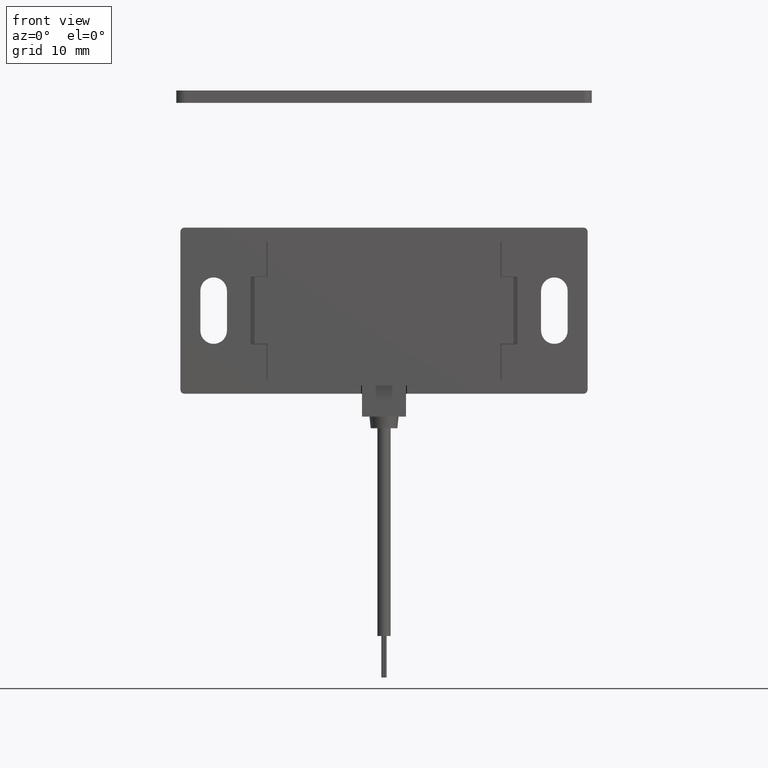
[diagram: clean part render]
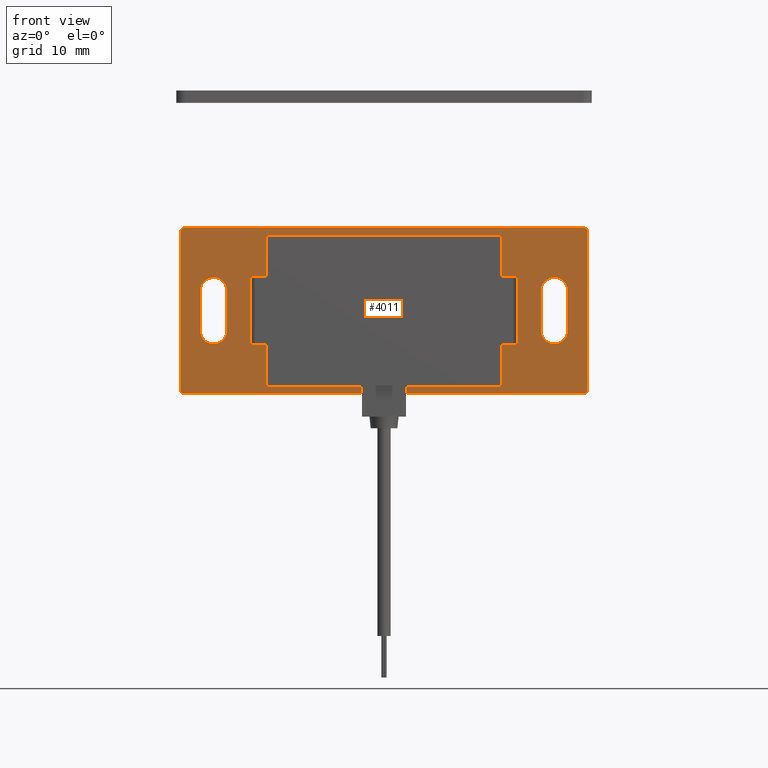
[diagram: same view with one face highlighted and labeled with its STEP entity id]
A machine part, front view. The second image highlights one B-rep face of the part: STEP entity #4011.
In plain terms, the highlighted planar face has unit normal (0, -1, 0).
Its self-contained STEP definition (entity closure, byte-faithful):
#23 = VECTOR ( 'NONE', #5667, 1000.000000000000000 ) ;
#65 = ORIENTED_EDGE ( 'NONE', *, *, #4396, .F. ) ;
#129 = CARTESIAN_POINT ( 'NONE',  ( 14.15000000000000600, 0.0000000000000000000, -9.099999999999999600 ) ) ;
#132 = EDGE_CURVE ( 'NONE', #2682, #5626, #6098, .T. ) ;
#136 = EDGE_CURVE ( 'NONE', #2744, #3153, #4745, .T. ) ;
#157 = ORIENTED_EDGE ( 'NONE', *, *, #6533, .F. ) ;
#175 = AXIS2_PLACEMENT_3D ( 'NONE', #972, #3485, #4472 ) ;
#208 = VERTEX_POINT ( 'NONE', #522 ) ;
#280 = VERTEX_POINT ( 'NONE', #2291 ) ;
#296 = EDGE_CURVE ( 'NONE', #280, #1565, #3981, .T. ) ;
#308 = DIRECTION ( 'NONE',  ( 0.0000000000000000000, -0.0000000000000000000, -1.000000000000000000 ) ) ;
#342 = CARTESIAN_POINT ( 'NONE',  ( -18.89999999999999500, -8.673617379884035500E-016, -2.399999999999999500 ) ) ;
#345 = VERTEX_POINT ( 'NONE', #5423 ) ;
#365 = VERTEX_POINT ( 'NONE', #2527 ) ;
#369 = VERTEX_POINT ( 'NONE', #3476 ) ;
#402 = LINE ( 'NONE', #1707, #2939 ) ;
#406 = CARTESIAN_POINT ( 'NONE',  ( 24.50000000000001100, 0.0000000000000000000, -9.500000000000000000 ) ) ;
#468 = CARTESIAN_POINT ( 'NONE',  ( -16.05000000000000100, 0.0000000000000000000, 4.099999999999999600 ) ) ;
#470 = VERTEX_POINT ( 'NONE', #2857 ) ;
#522 = CARTESIAN_POINT ( 'NONE',  ( -22.09999999999999400, 0.0000000000000000000, 2.399999999999999000 ) ) ;
#559 = CARTESIAN_POINT ( 'NONE',  ( -14.14999999999999900, 0.0000000000000000000, 4.099999999999999600 ) ) ;
#565 = CIRCLE ( 'NONE', #2143, 0.5000000000000004400 ) ;
#606 = CARTESIAN_POINT ( 'NONE',  ( 2.749999999999998200, -6.735557395310442000E-016, -9.000000000000001800 ) ) ;
#633 = CARTESIAN_POINT ( 'NONE',  ( -18.89999999999999500, -8.673617379884035500E-016, -2.399999999999999500 ) ) ;
#667 = CARTESIAN_POINT ( 'NONE',  ( -24.49999999999998900, 0.0000000000000000000, 9.500000000000000000 ) ) ;
#675 = DIRECTION ( 'NONE',  ( -0.0000000000000000000, -0.0000000000000000000, -1.000000000000000000 ) ) ;
#744 = EDGE_LOOP ( 'NONE', ( #4761, #2959, #4172, #2972 ) ) ;
#756 = VERTEX_POINT ( 'NONE', #3712 ) ;
#803 = CARTESIAN_POINT ( 'NONE',  ( -23.99999999999998900, 0.0000000000000000000, -10.00000000000000000 ) ) ;
#856 = CARTESIAN_POINT ( 'NONE',  ( 24.00000000000001100, 0.0000000000000000000, -9.500000000000000000 ) ) ;
#892 = VECTOR ( 'NONE', #6535, 1000.000000000000000 ) ;
#925 = VERTEX_POINT ( 'NONE', #4146 ) ;
#945 = ORIENTED_EDGE ( 'NONE', *, *, #1043, .T. ) ;
#948 = CARTESIAN_POINT ( 'NONE',  ( -14.14999999999999900, 0.0000000000000000000, -4.099999999999999600 ) ) ;
#956 = LINE ( 'NONE', #2376, #3481 ) ;
#957 = EDGE_CURVE ( 'NONE', #3280, #3073, #2250, .T. ) ;
#964 = VECTOR ( 'NONE', #1975, 1000.000000000000000 ) ;
#972 = CARTESIAN_POINT ( 'NONE',  ( -23.99999999999998900, 0.0000000000000000000, 9.500000000000000000 ) ) ;
#990 = DIRECTION ( 'NONE',  ( 0.0000000000000000000, -0.0000000000000000000, -1.000000000000000000 ) ) ;
#1029 = VERTEX_POINT ( 'NONE', #4789 ) ;
#1043 = EDGE_CURVE ( 'NONE', #2122, #925, #1772, .T. ) ;
#1084 = VECTOR ( 'NONE', #4082, 1000.000000000000000 ) ;
#1106 = CARTESIAN_POINT ( 'NONE',  ( -24.49999999999998900, 0.0000000000000000000, -10.00000000000000000 ) ) ;
#1122 = VERTEX_POINT ( 'NONE', #5454 ) ;
#1182 = ORIENTED_EDGE ( 'NONE', *, *, #4119, .T. ) ;
#1193 = CARTESIAN_POINT ( 'NONE',  ( 2.749999999999998200, -6.735557395310442000E-016, -10.00000000000000000 ) ) ;
#1197 = ORIENTED_EDGE ( 'NONE', *, *, #4403, .F. ) ;
#1240 = DIRECTION ( 'NONE',  ( 0.0000000000000000000, 0.0000000000000000000, 1.000000000000000000 ) ) ;
#1284 = EDGE_CURVE ( 'NONE', #2190, #6356, #1367, .T. ) ;
#1309 = ORIENTED_EDGE ( 'NONE', *, *, #2545, .F. ) ;
#1344 = ORIENTED_EDGE ( 'NONE', *, *, #3680, .T. ) ;
#1367 = LINE ( 'NONE', #2498, #23 ) ;
#1373 = DIRECTION ( 'NONE',  ( 0.0000000000000000000, 0.0000000000000000000, -1.000000000000000000 ) ) ;
#1391 = DIRECTION ( 'NONE',  ( 0.0000000000000000000, -1.000000000000000000, 0.0000000000000000000 ) ) ;
#1398 = CARTESIAN_POINT ( 'NONE',  ( 20.49999999999999600, -4.336808689942017700E-016, 2.399999999999999900 ) ) ;
#1441 = EDGE_CURVE ( 'NONE', #3153, #1940, #5765, .T. ) ;
#1452 = EDGE_CURVE ( 'NONE', #2042, #5992, #565, .T. ) ;
#1474 = EDGE_CURVE ( 'NONE', #3968, #4525, #402, .T. ) ;
#1509 = CARTESIAN_POINT ( 'NONE',  ( -14.14999999999999900, 0.0000000000000000000, -4.099999999999999600 ) ) ;
#1540 = VECTOR ( 'NONE', #3374, 1000.000000000000000 ) ;
#1565 = VERTEX_POINT ( 'NONE', #803 ) ;
#1574 = CARTESIAN_POINT ( 'NONE',  ( 22.09999999999999400, 0.0000000000000000000, 2.399999999999999000 ) ) ;
#1593 = CARTESIAN_POINT ( 'NONE',  ( -18.89999999999999900, -8.673617379884035500E-016, 2.399999999999999900 ) ) ;
#1601 = DIRECTION ( 'NONE',  ( -1.000000000000000000, 0.0000000000000000000, 0.0000000000000000000 ) ) ;
#1600 = CIRCLE ( 'NONE', #4407, 1.599999999999997200 ) ;
#1683 = LINE ( 'NONE', #606, #4813 ) ;
#1707 = CARTESIAN_POINT ( 'NONE',  ( 18.89999999999999500, -4.336808689942017700E-016, -2.399999999999999500 ) ) ;
#1764 = VECTOR ( 'NONE', #4668, 1000.000000000000000 ) ;
#1768 = DIRECTION ( 'NONE',  ( -5.102127870520014400E-017, -1.000000000000000000, -0.0000000000000000000 ) ) ;
#1772 = LINE ( 'NONE', #468, #5621 ) ;
#1791 = VECTOR ( 'NONE', #3743, 1000.000000000000000 ) ;
#1888 = DIRECTION ( 'NONE',  ( -5.102127870520014400E-017, -1.000000000000000000, -0.0000000000000000000 ) ) ;
#1906 = DIRECTION ( 'NONE',  ( -1.000000000000000000, -5.102127870520017500E-017, 0.0000000000000000000 ) ) ;
#1921 = DIRECTION ( 'NONE',  ( -1.000000000000000000, -0.0000000000000000000, -0.0000000000000000000 ) ) ;
#1940 = VERTEX_POINT ( 'NONE', #129 ) ;
#1965 = CARTESIAN_POINT ( 'NONE',  ( 18.89999999999999500, 0.0000000000000000000, 2.399999999999999900 ) ) ;
#1975 = DIRECTION ( 'NONE',  ( -1.000000000000000000, 0.0000000000000000000, 0.0000000000000000000 ) ) ;
#1990 = VERTEX_POINT ( 'NONE', #633 ) ;
#2042 = VERTEX_POINT ( 'NONE', #4035 ) ;
#2044 = LINE ( 'NONE', #342, #4528 ) ;
#2079 = DIRECTION ( 'NONE',  ( -6.938893903907227400E-016, 0.0000000000000000000, 1.000000000000000000 ) ) ;
#2122 = VERTEX_POINT ( 'NONE', #6007 ) ;
#2143 = AXIS2_PLACEMENT_3D ( 'NONE', #3204, #3174, #2711 ) ;
#2158 = ORIENTED_EDGE ( 'NONE', *, *, #136, .T. ) ;
#2190 = VERTEX_POINT ( 'NONE', #5581 ) ;
#2219 = EDGE_CURVE ( 'NONE', #369, #345, #3926, .T. ) ;
#2240 = EDGE_CURVE ( 'NONE', #4346, #756, #4928, .T. ) ;
#2250 = LINE ( 'NONE', #5240, #6083 ) ;
#2291 = CARTESIAN_POINT ( 'NONE',  ( -2.749999999999999100, 0.0000000000000000000, -10.00000000000000000 ) ) ;
#2321 = VECTOR ( 'NONE', #2359, 1000.000000000000000 ) ;
#2359 = DIRECTION ( 'NONE',  ( -1.387778780781445500E-015, 0.0000000000000000000, -1.000000000000000000 ) ) ;
#2376 = CARTESIAN_POINT ( 'NONE',  ( -2.750000000000001800, 0.0000000000000000000, -9.000000000000001800 ) ) ;
#2385 = ORIENTED_EDGE ( 'NONE', *, *, #1284, .F. ) ;
#2396 = ORIENTED_EDGE ( 'NONE', *, *, #6408, .F. ) ;
#2424 = FACE_OUTER_BOUND ( 'NONE', #3148, .T. ) ;
#2468 = CARTESIAN_POINT ( 'NONE',  ( 24.00000000000001100, 0.0000000000000000000, 10.00000000000000000 ) ) ;
#2485 = VECTOR ( 'NONE', #5978, 1000.000000000000000 ) ;
#2498 = CARTESIAN_POINT ( 'NONE',  ( -24.49999999999998900, 0.0000000000000000000, -10.00000000000000000 ) ) ;
#2511 = AXIS2_PLACEMENT_3D ( 'NONE', #4375, #1391, #4883 ) ;
#2518 = ORIENTED_EDGE ( 'NONE', *, *, #2219, .T. ) ;
#2527 = CARTESIAN_POINT ( 'NONE',  ( -16.05000000000000100, 0.0000000000000000000, -4.099999999999999600 ) ) ;
#2545 = EDGE_CURVE ( 'NONE', #1990, #3310, #2044, .T. ) ;
#2549 = EDGE_CURVE ( 'NONE', #2790, #1990, #3379, .T. ) ;
#2645 = LINE ( 'NONE', #5477, #2485 ) ;
#2663 = VECTOR ( 'NONE', #1921, 1000.000000000000000 ) ;
#2682 = VERTEX_POINT ( 'NONE', #5575 ) ;
#2711 = DIRECTION ( 'NONE',  ( 0.0000000000000000000, 0.0000000000000000000, -1.000000000000000000 ) ) ;
#2731 = EDGE_CURVE ( 'NONE', #1029, #5626, #4922, .T. ) ;
#2744 = VERTEX_POINT ( 'NONE', #4605 ) ;
#2785 = CARTESIAN_POINT ( 'NONE',  ( 20.49999999999999600, -4.336808689942017700E-016, -2.399999999999999500 ) ) ;
#2790 = VERTEX_POINT ( 'NONE', #3134 ) ;
#2828 = VECTOR ( 'NONE', #3584, 1000.000000000000000 ) ;
#2857 = CARTESIAN_POINT ( 'NONE',  ( 2.749999999999999100, 0.0000000000000000000, -9.099999999999999600 ) ) ;
#2880 = LINE ( 'NONE', #3275, #5211 ) ;
#2887 = LINE ( 'NONE', #3846, #4191 ) ;
#2939 = VECTOR ( 'NONE', #1240, 1000.000000000000000 ) ;
#2956 = CARTESIAN_POINT ( 'NONE',  ( 18.89999999999999500, -4.336808689942017700E-016, -2.399999999999999500 ) ) ;
#2959 = ORIENTED_EDGE ( 'NONE', *, *, #1474, .T. ) ;
#2972 = ORIENTED_EDGE ( 'NONE', *, *, #957, .T. ) ;
#2974 = ORIENTED_EDGE ( 'NONE', *, *, #3303, .T. ) ;
#2976 = CARTESIAN_POINT ( 'NONE',  ( 14.14999999999999900, 0.0000000000000000000, -4.099999999999999600 ) ) ;
#2983 = CARTESIAN_POINT ( 'NONE',  ( 16.05000000000000100, 0.0000000000000000000, -4.099999999999999600 ) ) ;
#3003 = CARTESIAN_POINT ( 'NONE',  ( 0.0000000000000000000, 0.0000000000000000000, 0.0000000000000000000 ) ) ;
#3012 = CARTESIAN_POINT ( 'NONE',  ( -14.14999999999999500, 0.0000000000000000000, 9.099999999999999600 ) ) ;
#3073 = VERTEX_POINT ( 'NONE', #5911 ) ;
#3099 = CIRCLE ( 'NONE', #6371, 1.599999999999997200 ) ;
#3119 = AXIS2_PLACEMENT_3D ( 'NONE', #2785, #6278, #3272 ) ;
#3134 = CARTESIAN_POINT ( 'NONE',  ( -22.09999999999999400, -4.336808689942017700E-016, -2.399999999999999500 ) ) ;
#3148 = EDGE_LOOP ( 'NONE', ( #5368, #1344, #3671, #2385, #3777, #5805, #3979, #1197, #5320, #4984, #4958, #3761, #157, #4727, #1182, #4674, #4780, #945, #2974, #3819, #3554, #2518, #4823, #2158 ) ) ;
#3153 = VERTEX_POINT ( 'NONE', #2976 ) ;
#3174 = DIRECTION ( 'NONE',  ( 0.0000000000000000000, -1.000000000000000000, 0.0000000000000000000 ) ) ;
#3204 = CARTESIAN_POINT ( 'NONE',  ( 24.00000000000001100, 0.0000000000000000000, 9.500000000000000000 ) ) ;
#3272 = DIRECTION ( 'NONE',  ( -1.000000000000000000, -5.102127870520017500E-017, 0.0000000000000000000 ) ) ;
#3275 = CARTESIAN_POINT ( 'NONE',  ( 24.50000000000001100, 0.0000000000000000000, 10.00000000000000000 ) ) ;
#3280 = VERTEX_POINT ( 'NONE', #1574 ) ;
#3303 = EDGE_CURVE ( 'NONE', #925, #1122, #5478, .T. ) ;
#3310 = VERTEX_POINT ( 'NONE', #1593 ) ;
#3374 = DIRECTION ( 'NONE',  ( 1.000000000000000000, 0.0000000000000000000, 0.0000000000000000000 ) ) ;
#3379 = CIRCLE ( 'NONE', #6350, 1.599999999999997200 ) ;
#3423 = LINE ( 'NONE', #3012, #892 ) ;
#3429 = LINE ( 'NONE', #3565, #5786 ) ;
#3470 = EDGE_LOOP ( 'NONE', ( #1309, #3956, #65, #2396 ) ) ;
#3476 = CARTESIAN_POINT ( 'NONE',  ( 14.14999999999999900, 0.0000000000000000000, 4.099999999999999600 ) ) ;
#3481 = VECTOR ( 'NONE', #6377, 1000.000000000000000 ) ;
#3485 = DIRECTION ( 'NONE',  ( 0.0000000000000000000, -1.000000000000000000, 0.0000000000000000000 ) ) ;
#3554 = ORIENTED_EDGE ( 'NONE', *, *, #6502, .T. ) ;
#3565 = CARTESIAN_POINT ( 'NONE',  ( 16.05000000000000100, 0.0000000000000000000, 4.099999999999999600 ) ) ;
#3584 = DIRECTION ( 'NONE',  ( 6.938893903907227400E-016, 0.0000000000000000000, 1.000000000000000000 ) ) ;
#3594 = CARTESIAN_POINT ( 'NONE',  ( -24.49999999999998900, 0.0000000000000000000, 10.00000000000000000 ) ) ;
#3624 = DIRECTION ( 'NONE',  ( -0.0000000000000000000, -0.0000000000000000000, -1.000000000000000000 ) ) ;
#3641 = LINE ( 'NONE', #5314, #2321 ) ;
#3671 = ORIENTED_EDGE ( 'NONE', *, *, #5577, .T. ) ;
#3680 = EDGE_CURVE ( 'NONE', #1940, #470, #4591, .T. ) ;
#3701 = EDGE_CURVE ( 'NONE', #3073, #3968, #4430, .T. ) ;
#3712 = CARTESIAN_POINT ( 'NONE',  ( -14.14999999999999500, 0.0000000000000000000, -9.099999999999999600 ) ) ;
#3719 = CARTESIAN_POINT ( 'NONE',  ( 14.15000000000000600, 0.0000000000000000000, -9.099999999999999600 ) ) ;
#3737 = FACE_BOUND ( 'NONE', #3470, .T. ) ;
#3743 = DIRECTION ( 'NONE',  ( -1.000000000000000000, 0.0000000000000000000, 0.0000000000000000000 ) ) ;
#3761 = ORIENTED_EDGE ( 'NONE', *, *, #296, .F. ) ;
#3770 = DIRECTION ( 'NONE',  ( 0.0000000000000000000, 0.0000000000000000000, -1.000000000000000000 ) ) ;
#3777 = ORIENTED_EDGE ( 'NONE', *, *, #3849, .T. ) ;
#3778 = CARTESIAN_POINT ( 'NONE',  ( -2.750000000000002700, 0.0000000000000000000, -9.099999999999999600 ) ) ;
#3819 = ORIENTED_EDGE ( 'NONE', *, *, #4580, .T. ) ;
#3846 = CARTESIAN_POINT ( 'NONE',  ( -22.09999999999999400, -4.336808689942017700E-016, -2.399999999999999500 ) ) ;
#3849 = EDGE_CURVE ( 'NONE', #2190, #3935, #4827, .T. ) ;
#3874 = DIRECTION ( 'NONE',  ( 0.0000000000000000000, 0.0000000000000000000, 1.000000000000000000 ) ) ;
#3926 = LINE ( 'NONE', #4565, #1084 ) ;
#3935 = VERTEX_POINT ( 'NONE', #406 ) ;
#3956 = ORIENTED_EDGE ( 'NONE', *, *, #2549, .F. ) ;
#3968 = VERTEX_POINT ( 'NONE', #2956 ) ;
#3979 = ORIENTED_EDGE ( 'NONE', *, *, #1452, .T. ) ;
#3981 = LINE ( 'NONE', #1106, #2663 ) ;
#4011 = ADVANCED_FACE ( 'NONE', ( #5068, #3737, #2424 ), #4982, .T. ) ;
#4012 = DIRECTION ( 'NONE',  ( 0.0000000000000000000, -1.000000000000000000, 0.0000000000000000000 ) ) ;
#4024 = VERTEX_POINT ( 'NONE', #1509 ) ;
#4035 = CARTESIAN_POINT ( 'NONE',  ( 24.50000000000001100, 0.0000000000000000000, 9.500000000000000000 ) ) ;
#4082 = DIRECTION ( 'NONE',  ( 1.000000000000000000, 0.0000000000000000000, 0.0000000000000000000 ) ) ;
#4100 = EDGE_CURVE ( 'NONE', #345, #2744, #3429, .T. ) ;
#4119 = EDGE_CURVE ( 'NONE', #756, #4024, #4584, .T. ) ;
#4146 = CARTESIAN_POINT ( 'NONE',  ( -14.14999999999999900, 0.0000000000000000000, 4.099999999999999600 ) ) ;
#4172 = ORIENTED_EDGE ( 'NONE', *, *, #5926, .T. ) ;
#4191 = VECTOR ( 'NONE', #308, 1000.000000000000000 ) ;
#4346 = VERTEX_POINT ( 'NONE', #3778 ) ;
#4358 = DIRECTION ( 'NONE',  ( 0.0000000000000000000, -1.000000000000000000, 0.0000000000000000000 ) ) ;
#4375 = CARTESIAN_POINT ( 'NONE',  ( -23.99999999999998900, 0.0000000000000000000, -9.500000000000000000 ) ) ;
#4396 = EDGE_CURVE ( 'NONE', #208, #2790, #2887, .T. ) ;
#4403 = EDGE_CURVE ( 'NONE', #2682, #5992, #5382, .T. ) ;
#4407 = AXIS2_PLACEMENT_3D ( 'NONE', #4752, #1768, #5267 ) ;
#4422 = VECTOR ( 'NONE', #2079, 1000.000000000000000 ) ;
#4430 = CIRCLE ( 'NONE', #3119, 1.599999999999997200 ) ;
#4472 = DIRECTION ( 'NONE',  ( 0.0000000000000000000, 0.0000000000000000000, -1.000000000000000000 ) ) ;
#4525 = VERTEX_POINT ( 'NONE', #1965 ) ;
#4528 = VECTOR ( 'NONE', #3874, 1000.000000000000000 ) ;
#4565 = CARTESIAN_POINT ( 'NONE',  ( 14.14999999999999900, 0.0000000000000000000, 4.099999999999999600 ) ) ;
#4580 = EDGE_CURVE ( 'NONE', #1122, #5082, #3423, .T. ) ;
#4584 = LINE ( 'NONE', #6085, #4422 ) ;
#4588 = CARTESIAN_POINT ( 'NONE',  ( 14.15000000000000600, 0.0000000000000000000, -9.099999999999999600 ) ) ;
#4591 = LINE ( 'NONE', #3719, #1791 ) ;
#4605 = CARTESIAN_POINT ( 'NONE',  ( 16.05000000000000100, 0.0000000000000000000, -4.099999999999999600 ) ) ;
#4606 = DIRECTION ( 'NONE',  ( -1.000000000000000000, 0.0000000000000000000, 0.0000000000000000000 ) ) ;
#4617 = DIRECTION ( 'NONE',  ( 1.000000000000000000, 0.0000000000000000000, 0.0000000000000000000 ) ) ;
#4668 = DIRECTION ( 'NONE',  ( 1.387778780781445500E-015, 0.0000000000000000000, -1.000000000000000000 ) ) ;
#4674 = ORIENTED_EDGE ( 'NONE', *, *, #6016, .T. ) ;
#4727 = ORIENTED_EDGE ( 'NONE', *, *, #2240, .T. ) ;
#4745 = LINE ( 'NONE', #2983, #5072 ) ;
#4752 = CARTESIAN_POINT ( 'NONE',  ( -20.49999999999999600, -8.673617379884035500E-016, 2.399999999999999900 ) ) ;
#4761 = ORIENTED_EDGE ( 'NONE', *, *, #3701, .T. ) ;
#4762 = VECTOR ( 'NONE', #5617, 1000.000000000000000 ) ;
#4780 = ORIENTED_EDGE ( 'NONE', *, *, #6019, .T. ) ;
#4789 = CARTESIAN_POINT ( 'NONE',  ( -24.49999999999998900, 0.0000000000000000000, -9.500000000000000000 ) ) ;
#4813 = VECTOR ( 'NONE', #3624, 1000.000000000000000 ) ;
#4823 = ORIENTED_EDGE ( 'NONE', *, *, #4100, .T. ) ;
#4827 = CIRCLE ( 'NONE', #5473, 0.5000000000000004400 ) ;
#4869 = CARTESIAN_POINT ( 'NONE',  ( -20.49999999999999600, -8.673617379884035500E-016, -2.399999999999999500 ) ) ;
#4883 = DIRECTION ( 'NONE',  ( 0.0000000000000000000, 0.0000000000000000000, -1.000000000000000000 ) ) ;
#4892 = DIRECTION ( 'NONE',  ( -5.102127870520014400E-017, 1.000000000000000000, 0.0000000000000000000 ) ) ;
#4922 = LINE ( 'NONE', #3594, #4762 ) ;
#4925 = EDGE_CURVE ( 'NONE', #1029, #1565, #5371, .T. ) ;
#4928 = LINE ( 'NONE', #4588, #6286 ) ;
#4958 = ORIENTED_EDGE ( 'NONE', *, *, #4925, .T. ) ;
#4964 = LINE ( 'NONE', #948, #964 ) ;
#4982 = PLANE ( 'NONE',  #5345 ) ;
#4984 = ORIENTED_EDGE ( 'NONE', *, *, #2731, .F. ) ;
#5068 = FACE_BOUND ( 'NONE', #744, .T. ) ;
#5072 = VECTOR ( 'NONE', #4606, 1000.000000000000000 ) ;
#5082 = VERTEX_POINT ( 'NONE', #6018 ) ;
#5211 = VECTOR ( 'NONE', #3770, 1000.000000000000000 ) ;
#5240 = CARTESIAN_POINT ( 'NONE',  ( 22.09999999999999400, 0.0000000000000000000, -2.399999999999999500 ) ) ;
#5267 = DIRECTION ( 'NONE',  ( 1.000000000000000000, -5.102127870520023700E-017, 0.0000000000000000000 ) ) ;
#5314 = CARTESIAN_POINT ( 'NONE',  ( 14.15000000000000600, 0.0000000000000000000, 9.099999999999999600 ) ) ;
#5320 = ORIENTED_EDGE ( 'NONE', *, *, #132, .T. ) ;
#5345 = AXIS2_PLACEMENT_3D ( 'NONE', #3003, #4012, #990 ) ;
#5368 = ORIENTED_EDGE ( 'NONE', *, *, #1441, .T. ) ;
#5371 = CIRCLE ( 'NONE', #2511, 0.5000000000000004400 ) ;
#5382 = LINE ( 'NONE', #6376, #1540 ) ;
#5390 = DIRECTION ( 'NONE',  ( 1.000000000000000000, -5.102127870520023700E-017, 0.0000000000000000000 ) ) ;
#5423 = CARTESIAN_POINT ( 'NONE',  ( 16.05000000000000100, 0.0000000000000000000, 4.099999999999999600 ) ) ;
#5454 = CARTESIAN_POINT ( 'NONE',  ( -14.14999999999999500, 0.0000000000000000000, 9.099999999999999600 ) ) ;
#5473 = AXIS2_PLACEMENT_3D ( 'NONE', #856, #4358, #1373 ) ;
#5477 = CARTESIAN_POINT ( 'NONE',  ( -16.05000000000000100, 0.0000000000000000000, -4.099999999999999600 ) ) ;
#5478 = LINE ( 'NONE', #559, #2828 ) ;
#5575 = CARTESIAN_POINT ( 'NONE',  ( -23.99999999999998900, 0.0000000000000000000, 10.00000000000000000 ) ) ;
#5577 = EDGE_CURVE ( 'NONE', #470, #6356, #1683, .T. ) ;
#5581 = CARTESIAN_POINT ( 'NONE',  ( 24.00000000000001100, 0.0000000000000000000, -10.00000000000000000 ) ) ;
#5617 = DIRECTION ( 'NONE',  ( -0.0000000000000000000, -0.0000000000000000000, 1.000000000000000000 ) ) ;
#5621 = VECTOR ( 'NONE', #4617, 1000.000000000000000 ) ;
#5626 = VERTEX_POINT ( 'NONE', #667 ) ;
#5667 = DIRECTION ( 'NONE',  ( -1.000000000000000000, -0.0000000000000000000, -0.0000000000000000000 ) ) ;
#5739 = CARTESIAN_POINT ( 'NONE',  ( 14.14999999999999900, 0.0000000000000000000, -4.099999999999999600 ) ) ;
#5743 = EDGE_CURVE ( 'NONE', #2042, #3935, #2880, .T. ) ;
#5765 = LINE ( 'NONE', #5739, #1764 ) ;
#5786 = VECTOR ( 'NONE', #6063, 1000.000000000000000 ) ;
#5805 = ORIENTED_EDGE ( 'NONE', *, *, #5743, .F. ) ;
#5911 = CARTESIAN_POINT ( 'NONE',  ( 22.09999999999999400, 0.0000000000000000000, -2.399999999999999500 ) ) ;
#5926 = EDGE_CURVE ( 'NONE', #4525, #3280, #3099, .T. ) ;
#5978 = DIRECTION ( 'NONE',  ( 0.0000000000000000000, 0.0000000000000000000, 1.000000000000000000 ) ) ;
#5992 = VERTEX_POINT ( 'NONE', #2468 ) ;
#6007 = CARTESIAN_POINT ( 'NONE',  ( -16.05000000000000100, 0.0000000000000000000, 4.099999999999999600 ) ) ;
#6016 = EDGE_CURVE ( 'NONE', #4024, #365, #4964, .T. ) ;
#6018 = CARTESIAN_POINT ( 'NONE',  ( 14.15000000000000600, 0.0000000000000000000, 9.099999999999999600 ) ) ;
#6019 = EDGE_CURVE ( 'NONE', #365, #2122, #2645, .T. ) ;
#6063 = DIRECTION ( 'NONE',  ( 0.0000000000000000000, 0.0000000000000000000, -1.000000000000000000 ) ) ;
#6083 = VECTOR ( 'NONE', #675, 1000.000000000000000 ) ;
#6085 = CARTESIAN_POINT ( 'NONE',  ( -14.14999999999999500, 0.0000000000000000000, -9.099999999999999600 ) ) ;
#6098 = CIRCLE ( 'NONE', #175, 0.5000000000000004400 ) ;
#6278 = DIRECTION ( 'NONE',  ( -5.102127870520014400E-017, 1.000000000000000000, 0.0000000000000000000 ) ) ;
#6286 = VECTOR ( 'NONE', #1601, 1000.000000000000000 ) ;
#6350 = AXIS2_PLACEMENT_3D ( 'NONE', #4869, #1888, #5390 ) ;
#6356 = VERTEX_POINT ( 'NONE', #1193 ) ;
#6371 = AXIS2_PLACEMENT_3D ( 'NONE', #1398, #4892, #1906 ) ;
#6376 = CARTESIAN_POINT ( 'NONE',  ( -24.49999999999998900, 0.0000000000000000000, 10.00000000000000000 ) ) ;
#6377 = DIRECTION ( 'NONE',  ( -0.0000000000000000000, -0.0000000000000000000, -1.000000000000000000 ) ) ;
#6408 = EDGE_CURVE ( 'NONE', #3310, #208, #1600, .T. ) ;
#6502 = EDGE_CURVE ( 'NONE', #5082, #369, #3641, .T. ) ;
#6533 = EDGE_CURVE ( 'NONE', #4346, #280, #956, .T. ) ;
#6535 = DIRECTION ( 'NONE',  ( 1.000000000000000000, 0.0000000000000000000, 0.0000000000000000000 ) ) ;